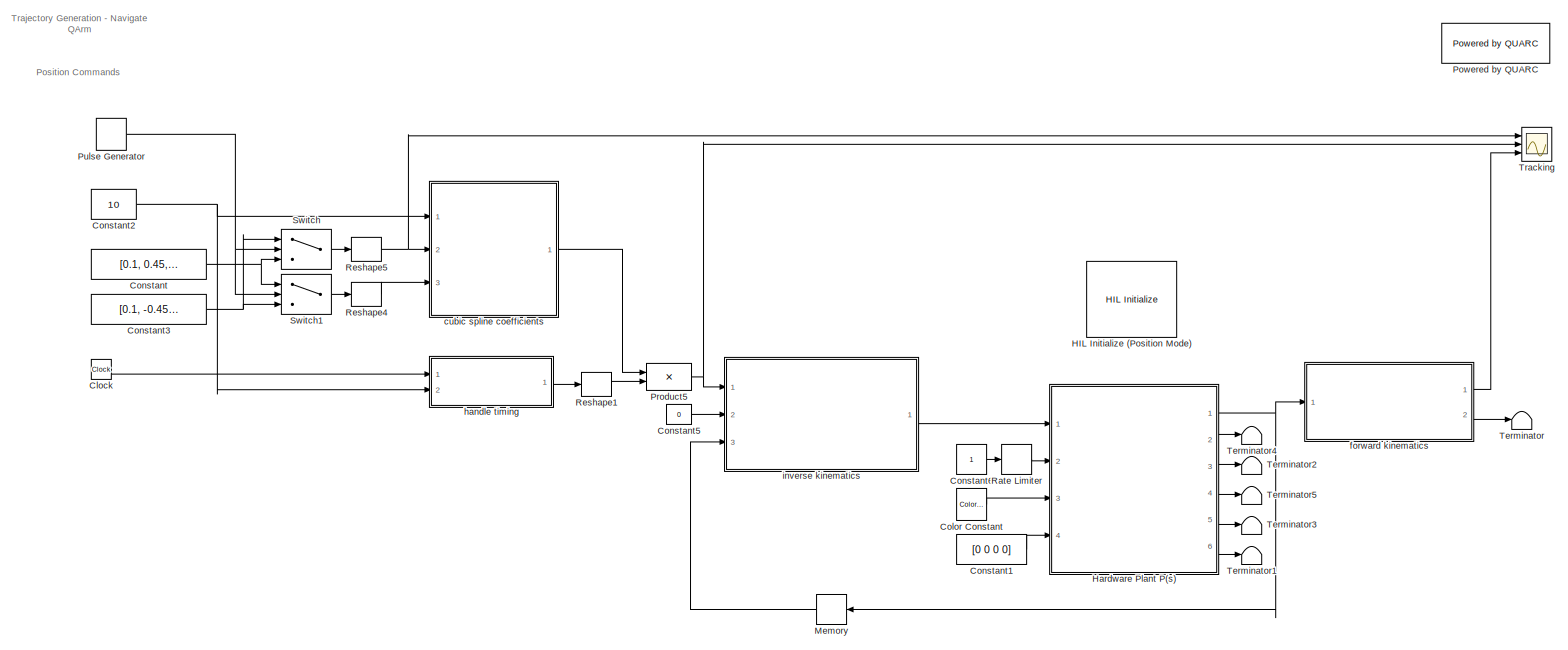
[diagram: root canvas - part 1/1, most of the canvas]
MODEL slx_2e663a84c412
KIND model
CONFIG AbsTol = auto
CONFIG EnableMultiTasking = on
CONFIG FixedStep = 1/500
CONFIG MaxStep = auto
CONFIG MinStep = auto
CONFIG RelTol = 1e-3
CONFIG SampleTimeConstraint = Unconstrained
CONFIG SolverName = ode4
CONFIG StartTime = 0.0
CONFIG StopTime = inf
BLOCK [Clock] Clock
BLOCK [Reference] Color Constant  REF=quarc_library/Sources/Signals/Color Constant
  Ports = [0, 1]
  SourceBlock = quarc_library/Sources/Signals/Color Constant
  SourceProductName = QUARC Targets
  SourceType = Color Constant
BLOCK [Constant] Constant
  Value = [0.1, 0.45, 0.3]
BLOCK [Constant] Constant1
  Value = [0 0 0 0]
BLOCK [Constant] Constant2
  Value = 10
BLOCK [Constant] Constant3
  Value = [0.1, -0.45, 0.3]
BLOCK [Constant] Constant5
  Value = 0
BLOCK [Constant] Constant6
BLOCK [Reference] HIL Initialize (Position Mode)  REF=quarc_library/Data Acquisition/Generic/Configuration/HIL Initialize
  AttributesFormatString = %<object_name> (%<board_type>-%<board_number>)
  Ports = []
  SourceBlock = quarc_library/Data Acquisition/Generic/Configuration/HIL Initialize
  SourceProductName = QUARC Targets
  SourceType = HIL Initialize
  UserDataPersistent = on
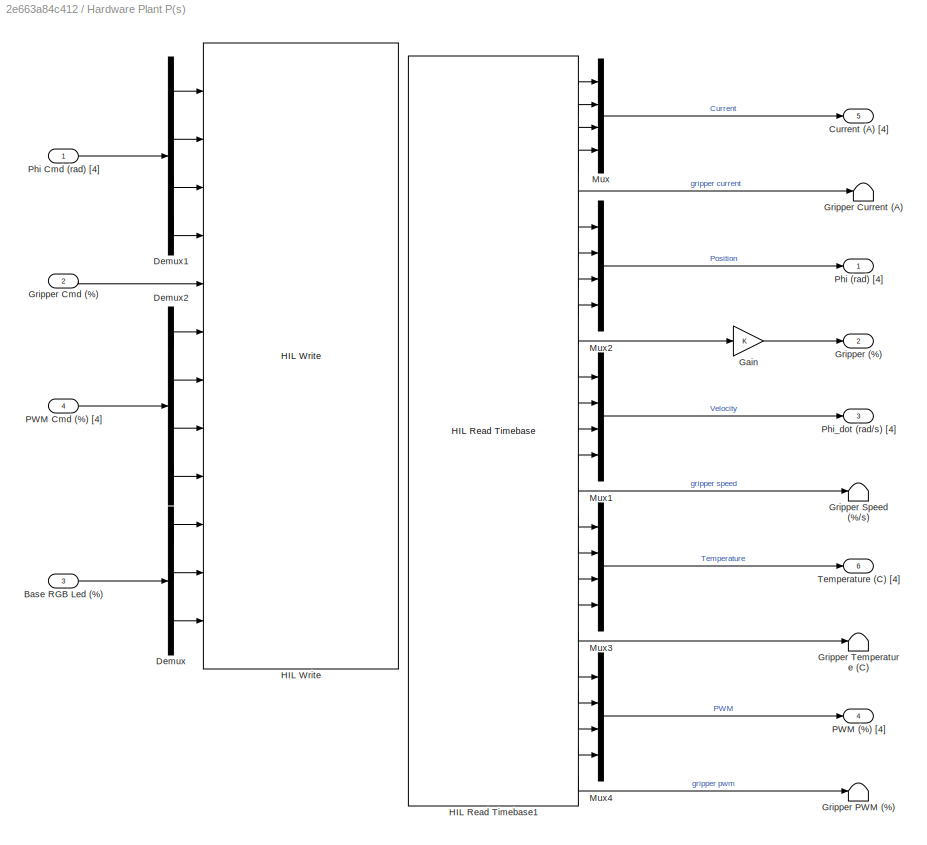
BLOCK [SubSystem] Hardware Plant P(s)
  Ports = [4, 6]
BLOCK [Inport] Hardware Plant P(s)/Base RGB Led (%)
  Port = 3
BLOCK [Outport] Hardware Plant P(s)/Current (A) [4]
  Port = 5
  VectorParamsAs1DForOutWhenUnconnected = off
BLOCK [Demux] Hardware Plant P(s)/Demux
  Outputs = 3
  Ports = [1, 3]
BLOCK [Demux] Hardware Plant P(s)/Demux1
  Ports = [1, 4]
BLOCK [Demux] Hardware Plant P(s)/Demux2
  Ports = [1, 4]
BLOCK [Gain] Hardware Plant P(s)/Gain
BLOCK [Outport] Hardware Plant P(s)/Gripper (%)
  Port = 2
  VectorParamsAs1DForOutWhenUnconnected = off
BLOCK [Inport] Hardware Plant P(s)/Gripper Cmd (%)
  Port = 2
BLOCK [Terminator] Hardware Plant P(s)/Gripper Current (A)
BLOCK [Terminator] Hardware Plant P(s)/Gripper PWM (%)
BLOCK [Terminator] Hardware Plant P(s)/Gripper Speed (%//s)
BLOCK [Terminator] Hardware Plant P(s)/Gripper Temperature (C)
BLOCK [Reference] Hardware Plant P(s)/HIL Read Timebase1  REF=quarc_library/Data Acquisition/Generic/Timebases/HIL Read
Timebase
  AttributesFormatString = (%<object_name>)
  Ports = [0, 25]
  SourceBlock = quarc_library/Data Acquisition/Generic/Timebases/HIL Read\nTimebase
  SourceProductName = QUARC Targets
  SourceType = HIL Read Timebase
  UserDataPersistent = on
BLOCK [Reference] Hardware Plant P(s)/HIL Write  REF=quarc_library/Data Acquisition/Generic/Immediate I//O/HIL Write
  AttributesFormatString = (%<object_name>)
  Ports = [12]
  SourceBlock = quarc_library/Data Acquisition/Generic/Immediate I//O/HIL Write
  SourceProductName = QUARC Targets
  SourceType = HIL Write
  UserDataPersistent = on
BLOCK [Mux] Hardware Plant P(s)/Mux
  DisplayOption = bar
  Ports = [4, 1]
BLOCK [Mux] Hardware Plant P(s)/Mux1
  DisplayOption = bar
  Ports = [4, 1]
BLOCK [Mux] Hardware Plant P(s)/Mux2
  DisplayOption = bar
  Ports = [4, 1]
BLOCK [Mux] Hardware Plant P(s)/Mux3
  DisplayOption = bar
  Ports = [4, 1]
BLOCK [Mux] Hardware Plant P(s)/Mux4
  DisplayOption = bar
  Ports = [4, 1]
BLOCK [Outport] Hardware Plant P(s)/PWM (%) [4]
  Port = 4
  VectorParamsAs1DForOutWhenUnconnected = off
BLOCK [Inport] Hardware Plant P(s)/PWM Cmd (%) [4]
  Port = 4
BLOCK [Outport] Hardware Plant P(s)/Phi (rad) [4]
  VectorParamsAs1DForOutWhenUnconnected = off
BLOCK [Inport] Hardware Plant P(s)/Phi Cmd (rad) [4]
BLOCK [Outport] Hardware Plant P(s)/Phi_dot (rad//s) [4]
  Port = 3
  VectorParamsAs1DForOutWhenUnconnected = off
BLOCK [Outport] Hardware Plant P(s)/Temperature (C) [4]
  Port = 6
  VectorParamsAs1DForOutWhenUnconnected = off
BLOCK [Memory] Memory
BLOCK [Reference] Powered by QUARC  REF=quarc_library/Logos/Powered by QUARC
  Ports = []
  SourceBlock = quarc_library/Logos/Powered by QUARC
  SourceProductName = QUARC Targets
  SourceType = Powered by QUARC
BLOCK [Product] Product5
  Multiplication = Matrix(*)
  Ports = [2, 1]
BLOCK [DiscretePulseGenerator] Pulse Generator
  Period = 20
  Ports = [0, 1]
  PulseType = Time based
  PulseWidth = 50
BLOCK [RateLimiter] Rate Limiter
  SampleTimeMode = inherited
BLOCK [Reshape] Reshape1
  OutputDimensionality = Column vector (2-D)
  Ports = [1, 1]
BLOCK [Reshape] Reshape4
  OutputDimensionality = Column vector (2-D)
  Ports = [1, 1]
BLOCK [Reshape] Reshape5
  OutputDimensionality = Column vector (2-D)
  Ports = [1, 1]
BLOCK [Switch] Switch
  Criteria = u2 > Threshold
  InputSameDT = off
  SaturateOnIntegerOverflow = off
BLOCK [Switch] Switch1
  Criteria = u2 > Threshold
  InputSameDT = off
  SaturateOnIntegerOverflow = off
BLOCK [Terminator] Terminator
BLOCK [Terminator] Terminator1
BLOCK [Terminator] Terminator2
BLOCK [Terminator] Terminator3
BLOCK [Terminator] Terminator4
BLOCK [Terminator] Terminator5
BLOCK [Scope] Tracking
  Floating = off
  NumInputPorts = 3
  Ports = [3]
  ScopeSpecificationString = Simulink.scopes.TimeScopeBlockCfg('CurrentConfiguration', extmgr.ConfigurationSet(extmgr.Configuration('Core','General UI',true),extmgr.Configuration('Core','Source UI',true),extmgr.Configuration('Sources','WiredSimulink',true),extmgr.Configuration('Visuals','Time Domain',true,'SerializedDisplays',{struct('MinYLimReal','-0.3125','MaxYLimReal','0.3125','YLabelReal','','MinYLimMag','0.00000','MaxYLi...<+1498ch>
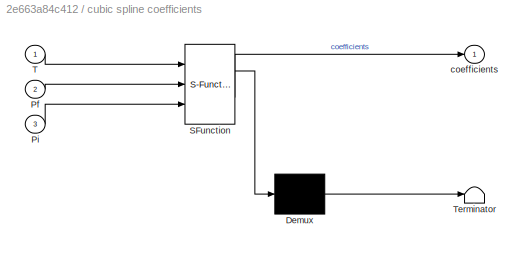
BLOCK [SubSystem] cubic spline coefficients
  ErrorFcn = Stateflow.Translate.translate
  NameLocation = top
  PermitHierarchicalResolution = ExplicitOnly
  Ports = [3, 1]
  SFBlockType = MATLAB Function
  TreatAsAtomicUnit = on
BLOCK [Demux] cubic spline coefficients/ Demux 
  Outputs = 1
  Ports = [1, 1]
BLOCK [S-Function] cubic spline coefficients/ SFunction 
  EnableBusSupport = off
  FunctionName = sf_sfun
  PortCounts = [3 2]
  Ports = [3, 2]
  SFcnIsStateOwnerBlock = off
  SFunctionDeploymentMode = off
  Tag = Stateflow S-Function 2
BLOCK [Terminator] cubic spline coefficients/ Terminator 
BLOCK [Inport] cubic spline coefficients/Pf
  Port = 2
BLOCK [Inport] cubic spline coefficients/Pi
  Port = 3
BLOCK [Inport] cubic spline coefficients/T
BLOCK [Outport] cubic spline coefficients/coefficients
  VectorParamsAs1DForOutWhenUnconnected = off
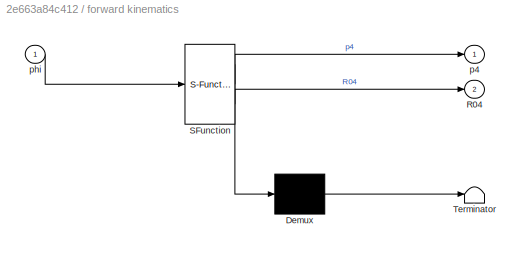
BLOCK [SubSystem] forward kinematics
  ErrorFcn = Stateflow.Translate.translate
  PermitHierarchicalResolution = ExplicitOnly
  Ports = [1, 2]
  SFBlockType = MATLAB Function
  TreatAsAtomicUnit = on
BLOCK [Demux] forward kinematics/ Demux 
  Outputs = 1
  Ports = [1, 1]
BLOCK [S-Function] forward kinematics/ SFunction 
  EnableBusSupport = off
  FunctionName = sf_sfun
  PortCounts = [1 3]
  Ports = [1, 3]
  SFcnIsStateOwnerBlock = off
  SFunctionDeploymentMode = off
  Tag = Stateflow S-Function 3
BLOCK [Terminator] forward kinematics/ Terminator 
BLOCK [Outport] forward kinematics/R04
  Port = 2
  VectorParamsAs1DForOutWhenUnconnected = off
BLOCK [Outport] forward kinematics/p4
  VectorParamsAs1DForOutWhenUnconnected = off
BLOCK [Inport] forward kinematics/phi
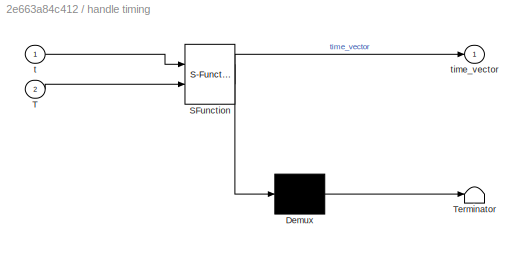
BLOCK [SubSystem] handle timing
  ErrorFcn = Stateflow.Translate.translate
  PermitHierarchicalResolution = ExplicitOnly
  Ports = [2, 1]
  SFBlockType = MATLAB Function
  TreatAsAtomicUnit = on
BLOCK [Demux] handle timing/ Demux 
  Outputs = 1
  Ports = [1, 1]
BLOCK [S-Function] handle timing/ SFunction 
  EnableBusSupport = off
  FunctionName = sf_sfun
  PortCounts = [2 2]
  Ports = [2, 2]
  SFcnIsStateOwnerBlock = off
  SFunctionDeploymentMode = off
  Tag = Stateflow S-Function 1
BLOCK [Terminator] handle timing/ Terminator 
BLOCK [Inport] handle timing/T
  Port = 2
BLOCK [Inport] handle timing/t
BLOCK [Outport] handle timing/time_vector
  VectorParamsAs1DForOutWhenUnconnected = off
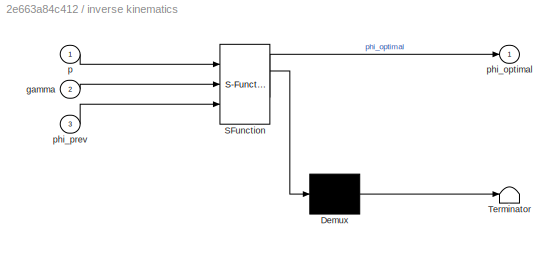
BLOCK [SubSystem] inverse kinematics
  ErrorFcn = Stateflow.Translate.translate
  NameLocation = top
  PermitHierarchicalResolution = ExplicitOnly
  Ports = [3, 1]
  SFBlockType = MATLAB Function
  TreatAsAtomicUnit = on
BLOCK [Demux] inverse kinematics/ Demux 
  Outputs = 1
  Ports = [1, 1]
BLOCK [S-Function] inverse kinematics/ SFunction 
  EnableBusSupport = off
  FunctionName = sf_sfun
  PortCounts = [3 2]
  Ports = [3, 2]
  SFcnIsStateOwnerBlock = off
  SFunctionDeploymentMode = off
  Tag = Stateflow S-Function 4
BLOCK [Terminator] inverse kinematics/ Terminator 
BLOCK [Inport] inverse kinematics/gamma
  Port = 2
BLOCK [Inport] inverse kinematics/p
BLOCK [Outport] inverse kinematics/phi_optimal
  VectorParamsAs1DForOutWhenUnconnected = off
BLOCK [Inport] inverse kinematics/phi_prev
  Port = 3
ANNOTATION (root): Trajectory Generation - Navigate QArm
ANNOTATION (root): Position Commands
LINE Clock:1 -> handle timing:1
LINE Color Constant:1 -> Hardware Plant P(s):3
LINE Constant1:1 -> Hardware Plant P(s):4
NET Constant2:1 -> cubic spline coefficients:1, handle timing:2
NET Constant3:1 -> Switch1:3, Switch:1
LINE Constant5:1 -> inverse kinematics:2
LINE Constant6:1 -> Rate Limiter:1
NET Constant:1 -> Switch1:1, Switch:3
LINE Hardware Plant P(s)/Base RGB Led (%):1 -> Hardware Plant P(s)/Demux:1
LINE Hardware Plant P(s)/Demux1:1 -> Hardware Plant P(s)/HIL Write:1
LINE Hardware Plant P(s)/Demux1:2 -> Hardware Plant P(s)/HIL Write:2
LINE Hardware Plant P(s)/Demux1:3 -> Hardware Plant P(s)/HIL Write:3
LINE Hardware Plant P(s)/Demux1:4 -> Hardware Plant P(s)/HIL Write:4
LINE Hardware Plant P(s)/Demux2:1 -> Hardware Plant P(s)/HIL Write:6
LINE Hardware Plant P(s)/Demux2:2 -> Hardware Plant P(s)/HIL Write:7
LINE Hardware Plant P(s)/Demux2:3 -> Hardware Plant P(s)/HIL Write:8
LINE Hardware Plant P(s)/Demux2:4 -> Hardware Plant P(s)/HIL Write:9
LINE Hardware Plant P(s)/Demux:1 -> Hardware Plant P(s)/HIL Write:10
LINE Hardware Plant P(s)/Demux:2 -> Hardware Plant P(s)/HIL Write:11
LINE Hardware Plant P(s)/Demux:3 -> Hardware Plant P(s)/HIL Write:12
LINE Hardware Plant P(s)/Gain:1 -> Hardware Plant P(s)/Gripper (%):1
LINE Hardware Plant P(s)/Gripper Cmd (%):1 -> Hardware Plant P(s)/HIL Write:5
LINE Hardware Plant P(s)/HIL Read Timebase1:1 -> Hardware Plant P(s)/Mux:1
LINE Hardware Plant P(s)/HIL Read Timebase1:10 -> Hardware Plant P(s)/Gain:1
LINE Hardware Plant P(s)/HIL Read Timebase1:11 -> Hardware Plant P(s)/Mux1:1
LINE Hardware Plant P(s)/HIL Read Timebase1:12 -> Hardware Plant P(s)/Mux1:2
LINE Hardware Plant P(s)/HIL Read Timebase1:13 -> Hardware Plant P(s)/Mux1:3
LINE Hardware Plant P(s)/HIL Read Timebase1:14 -> Hardware Plant P(s)/Mux1:4
LINE Hardware Plant P(s)/HIL Read Timebase1:15 -> Hardware Plant P(s)/Gripper Speed (%//s):1
LINE Hardware Plant P(s)/HIL Read Timebase1:16 -> Hardware Plant P(s)/Mux3:1
LINE Hardware Plant P(s)/HIL Read Timebase1:17 -> Hardware Plant P(s)/Mux3:2
LINE Hardware Plant P(s)/HIL Read Timebase1:18 -> Hardware Plant P(s)/Mux3:3
LINE Hardware Plant P(s)/HIL Read Timebase1:19 -> Hardware Plant P(s)/Mux3:4
LINE Hardware Plant P(s)/HIL Read Timebase1:2 -> Hardware Plant P(s)/Mux:2
LINE Hardware Plant P(s)/HIL Read Timebase1:20 -> Hardware Plant P(s)/Gripper Temperature (C):1
LINE Hardware Plant P(s)/HIL Read Timebase1:21 -> Hardware Plant P(s)/Mux4:1
LINE Hardware Plant P(s)/HIL Read Timebase1:22 -> Hardware Plant P(s)/Mux4:2
LINE Hardware Plant P(s)/HIL Read Timebase1:23 -> Hardware Plant P(s)/Mux4:3
LINE Hardware Plant P(s)/HIL Read Timebase1:24 -> Hardware Plant P(s)/Mux4:4
LINE Hardware Plant P(s)/HIL Read Timebase1:25 -> Hardware Plant P(s)/Gripper PWM (%):1
LINE Hardware Plant P(s)/HIL Read Timebase1:3 -> Hardware Plant P(s)/Mux:3
LINE Hardware Plant P(s)/HIL Read Timebase1:4 -> Hardware Plant P(s)/Mux:4
LINE Hardware Plant P(s)/HIL Read Timebase1:5 -> Hardware Plant P(s)/Gripper Current (A):1
LINE Hardware Plant P(s)/HIL Read Timebase1:6 -> Hardware Plant P(s)/Mux2:1
LINE Hardware Plant P(s)/HIL Read Timebase1:7 -> Hardware Plant P(s)/Mux2:2
LINE Hardware Plant P(s)/HIL Read Timebase1:8 -> Hardware Plant P(s)/Mux2:3
LINE Hardware Plant P(s)/HIL Read Timebase1:9 -> Hardware Plant P(s)/Mux2:4
LINE Hardware Plant P(s)/Mux1:1 -> Hardware Plant P(s)/Phi_dot (rad//s) [4]:1
LINE Hardware Plant P(s)/Mux2:1 -> Hardware Plant P(s)/Phi (rad) [4]:1
LINE Hardware Plant P(s)/Mux3:1 -> Hardware Plant P(s)/Temperature (C) [4]:1
LINE Hardware Plant P(s)/Mux4:1 -> Hardware Plant P(s)/PWM (%) [4]:1
LINE Hardware Plant P(s)/Mux:1 -> Hardware Plant P(s)/Current (A) [4]:1
LINE Hardware Plant P(s)/PWM Cmd (%) [4]:1 -> Hardware Plant P(s)/Demux2:1
LINE Hardware Plant P(s)/Phi Cmd (rad) [4]:1 -> Hardware Plant P(s)/Demux1:1
NET Hardware Plant P(s):1 -> Memory:1, forward kinematics:1
LINE Hardware Plant P(s):2 -> Terminator4:1
LINE Hardware Plant P(s):3 -> Terminator2:1
LINE Hardware Plant P(s):4 -> Terminator5:1
LINE Hardware Plant P(s):5 -> Terminator3:1
LINE Hardware Plant P(s):6 -> Terminator1:1
LINE Memory:1 -> inverse kinematics:3
NET Product5:1 -> Tracking:2, inverse kinematics:1
NET Pulse Generator:1 -> Switch1:2, Switch:2
LINE Rate Limiter:1 -> Hardware Plant P(s):2
LINE Reshape1:1 -> Product5:2
LINE Reshape4:1 -> cubic spline coefficients:3
NET Reshape5:1 -> Tracking:1, cubic spline coefficients:2
LINE Switch1:1 -> Reshape4:1
LINE Switch:1 -> Reshape5:1
LINE cubic spline coefficients:1 -> Product5:1
LINE forward kinematics:1 -> Tracking:3
LINE forward kinematics:2 -> Terminator:1
LINE handle timing:1 -> Reshape1:1
LINE inverse kinematics:1 -> Hardware Plant P(s):1
note: NET lines group one-source signal fan-out (src -> all destinations, sorted); 1:1 wires keep LINE
CHART handle timing states=1 transitions=1
  STATE_LABEL 'eML_blk_kernel()'
  STATE_LABEL 'SCRIPT:\nfunction time_vector = timing(t, T)\n\n% Keep the timer constrained\nt = ;\n\n% time vector \ntime_vector = [ ; ; ; ];\n'
CHART cubic spline coefficients states=1 transitions=1
  STATE_LABEL 'eML_blk_kernel()'
  STATE_LABEL 'SCRIPT:\nfunction coefficients = cubicSpline(T, Pf, Pi)\n\n% Cubic spline coefficients for X, Y and Z (coloumns)\na0 = [ ; ; ];\na1 = [ ; ; ];\na2 = [ ; ; ];\na3 = [ ; ; ];\n\n% Output coefficients as a 3 x 4 matrix (1 row each for x, y and z)\ncoefficients = [a0, a1, a2, a3];'
CHART forward kinematics states=1 transitions=1
  STATE_LABEL 'eML_blk_kernel()'
  STATE_LABEL 'SCRIPT:\nfunction [p4, R04] = qarmForwardKinematics(phi)\n\n%% QUANSER_ARM_FPK\n% v 4.0 - 4th June 2020\n\n% REFERENCE: \n% Chapter 3. Forward Kinematics\n% Robot Dynamics and Control \n% Spong, Vidyasagar\n% 1989\n\n% INPUTS:\n% phi     : Alternate joint angles vector 4 x 1\n\n% OUTPUTS:\n% p4      : End-effector frame {4} position vector expressed in base frame {0}\n% R04     : rotation matrix from end-effector ...<+1869ch>'
CHART inverse kinematics states=1 transitions=1
  STATE_LABEL 'eML_blk_kernel()'
  STATE_LABEL 'SCRIPT:\nfunction phi_optimal   = qarmInverseKinematics(p, gamma, phi_prev)\n\n%% QUANSER_ARM_IPK\n% v 4.0 - 4th June 2020\n\n% REFERENCE: \n% Chapter 4. Inverse Kinematics\n% Robot Dynamics and Control \n% Spong, Vidyasagar\n% 1989\n\n% INPUTS:\n% p        : end-effector position vector expressed in base frame {0}\n% gamma    : wrist rotation angle gamma\n\n% OUTPUTS:\n% phi_optimal : Best solution depending on p...<+1871ch>'
CHART  states=0 transitions=0
CHART  states=0 transitions=0
CHART  states=0 transitions=0
CHART  states=0 transitions=0
